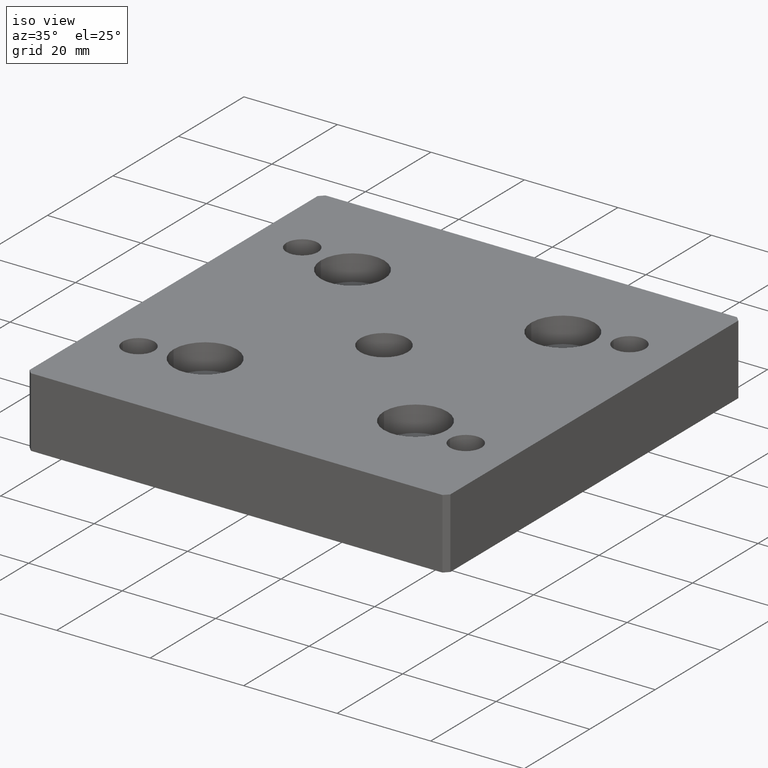
[diagram: clean part render]
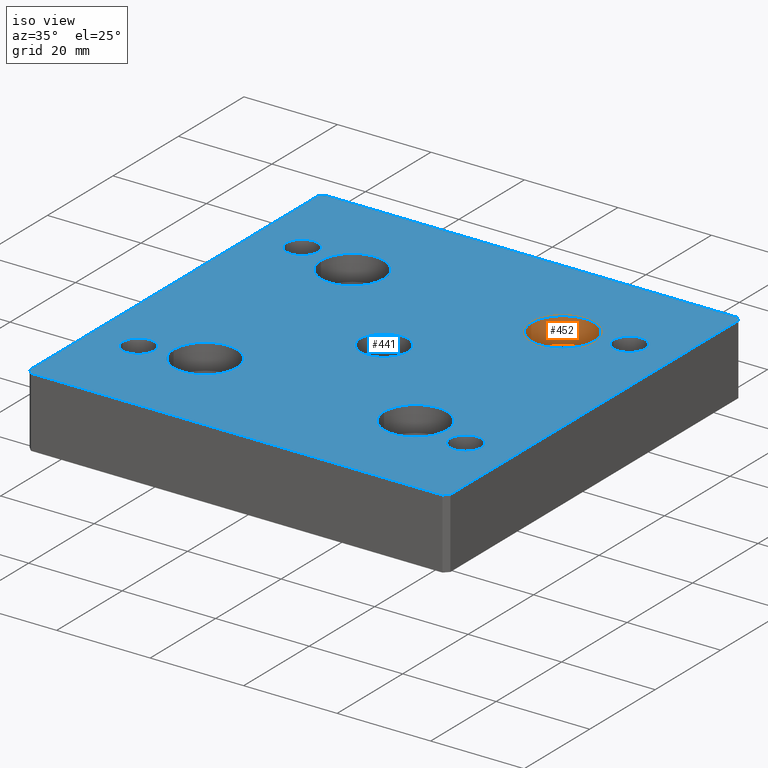
[diagram: same view with the hole feature highlighted: cylindrical wall and planar end face, labeled with their STEP entity ids]
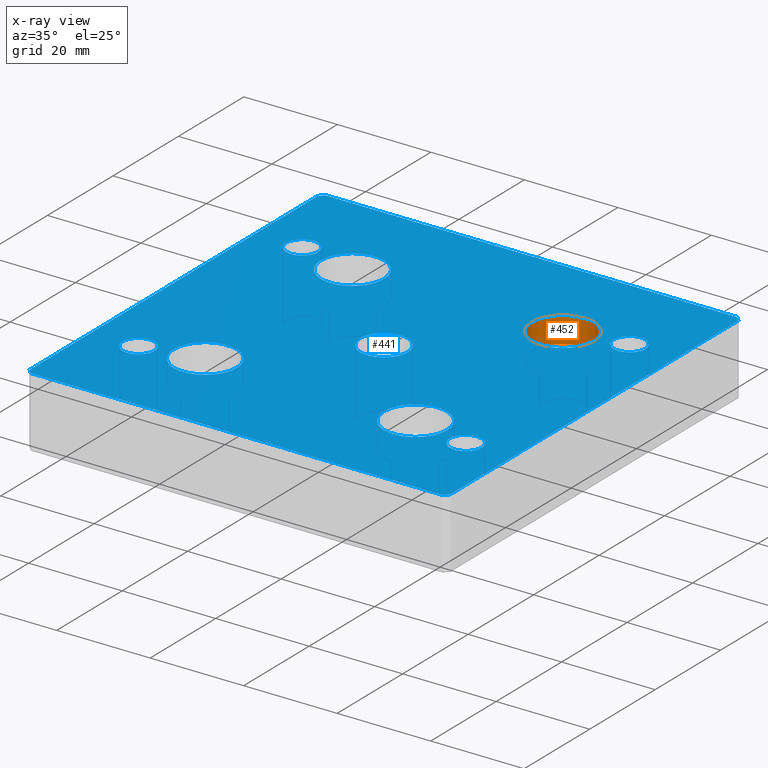
[diagram: x-ray of the same camera — body ghosted, the hole faces saturated]
A machine part, iso view. The highlighted faces form one hole feature of diameter 13.5 mm: the cylindrical wall (entity #452, orange) and its adjacent planar end face (entity #441, blue) — they share a circular edge in the B-rep.
The next image is the same camera in x-ray (body ghosted, the hole faces saturated) — the bore reads through the body.
Wall:
#105=FACE_BOUND('',#188,.T.);
#132=FACE_OUTER_BOUND('',#187,.T.);
#187=EDGE_LOOP('',(#405));
#188=EDGE_LOOP('',(#406));
#208=CIRCLE('',#478,6.75);
#222=CIRCLE('',#502,6.75);
#250=VERTEX_POINT('',#711);
#264=VERTEX_POINT('',#749);
#300=EDGE_CURVE('',#250,#250,#208,.T.);
#314=EDGE_CURVE('',#264,#264,#222,.T.);
#405=ORIENTED_EDGE('',*,*,#300,.T.);
#406=ORIENTED_EDGE('',*,*,#314,.F.);
#427=CYLINDRICAL_SURFACE('',#503,6.75);
#452=ADVANCED_FACE('',(#132,#105),#427,.F.);
#478=AXIS2_PLACEMENT_3D('',#712,#574,#575);
#502=AXIS2_PLACEMENT_3D('',#750,#622,#623);
#503=AXIS2_PLACEMENT_3D('',#751,#624,#625);
#574=DIRECTION('center_axis',(0.,0.,1.));
#575=DIRECTION('ref_axis',(1.,0.,0.));
#622=DIRECTION('center_axis',(0.,0.,1.));
#623=DIRECTION('ref_axis',(1.,0.,0.));
#624=DIRECTION('center_axis',(0.,0.,1.));
#625=DIRECTION('ref_axis',(1.,0.,0.));
#711=CARTESIAN_POINT('',(15.74999999991,22.49999999991,0.));
#712=CARTESIAN_POINT('Origin',(22.49999999991,22.49999999991,0.));
#749=CARTESIAN_POINT('',(15.74999999991,22.49999999991,-5.5));
#750=CARTESIAN_POINT('Origin',(22.49999999991,22.49999999991,-5.5));
#751=CARTESIAN_POINT('Origin',(22.49999999991,22.49999999991,-5.5));
End face:
#18=LINE('',#660,#42);
#21=LINE('',#666,#45);
#24=LINE('',#672,#48);
#27=LINE('',#678,#51);
#30=LINE('',#684,#54);
#33=LINE('',#690,#57);
#36=LINE('',#696,#60);
#38=LINE('',#699,#62);
#42=VECTOR('',#527,1.41421356236698);
#45=VECTOR('',#532,87.999999999648);
#48=VECTOR('',#537,1.41421356236763);
#51=VECTOR('',#542,87.999999999648);
#54=VECTOR('',#547,1.41421356236763);
#57=VECTOR('',#552,87.999999999648);
#60=VECTOR('',#557,1.41421356236698);
#62=VECTOR('',#561,87.999999999648);
#71=PLANE('',#472);
#78=FACE_BOUND('',#150,.T.);
#79=FACE_BOUND('',#151,.T.);
#80=FACE_BOUND('',#152,.T.);
#81=FACE_BOUND('',#153,.T.);
#82=FACE_BOUND('',#154,.T.);
#83=FACE_BOUND('',#155,.T.);
#84=FACE_BOUND('',#156,.T.);
#85=FACE_BOUND('',#157,.T.);
#86=FACE_BOUND('',#158,.T.);
#121=FACE_OUTER_BOUND('',#149,.T.);
#149=EDGE_LOOP('',(#353,#354,#355,#356,#357,#358,#359,#360));
#150=EDGE_LOOP('',(#361));
#151=EDGE_LOOP('',(#362));
#152=EDGE_LOOP('',(#363));
#153=EDGE_LOOP('',(#364));
#154=EDGE_LOOP('',(#365));
#155=EDGE_LOOP('',(#366));
#156=EDGE_LOOP('',(#367));
#157=EDGE_LOOP('',(#368));
#158=EDGE_LOOP('',(#369));
#201=CIRCLE('',#462,5.053);
#203=CIRCLE('',#473,3.375);
#204=CIRCLE('',#474,3.375);
#205=CIRCLE('',#475,3.375);
#206=CIRCLE('',#476,3.375);
#207=CIRCLE('',#477,6.75);
#208=CIRCLE('',#478,6.75);
#209=CIRCLE('',#479,6.75);
#210=CIRCLE('',#480,6.75);
#227=VERTEX_POINT('',#648);
#229=VERTEX_POINT('',#653);
#232=VERTEX_POINT('',#658);
#234=VERTEX_POINT('',#664);
#236=VERTEX_POINT('',#670);
#238=VERTEX_POINT('',#676);
#240=VERTEX_POINT('',#682);
#242=VERTEX_POINT('',#688);
#244=VERTEX_POINT('',#694);
#245=VERTEX_POINT('',#701);
#246=VERTEX_POINT('',#703);
#247=VERTEX_POINT('',#705);
#248=VERTEX_POINT('',#707);
#249=VERTEX_POINT('',#709);
#250=VERTEX_POINT('',#711);
#251=VERTEX_POINT('',#713);
#252=VERTEX_POINT('',#715);
#269=EDGE_CURVE('',#227,#227,#201,.T.);
#274=EDGE_CURVE('',#229,#232,#18,.T.);
#277=EDGE_CURVE('',#232,#234,#21,.T.);
#280=EDGE_CURVE('',#234,#236,#24,.T.);
#283=EDGE_CURVE('',#236,#238,#27,.T.);
#286=EDGE_CURVE('',#238,#240,#30,.T.);
#289=EDGE_CURVE('',#240,#242,#33,.T.);
#292=EDGE_CURVE('',#242,#244,#36,.T.);
#294=EDGE_CURVE('',#244,#229,#38,.T.);
#295=EDGE_CURVE('',#245,#245,#203,.T.);
#296=EDGE_CURVE('',#246,#246,#204,.T.);
#297=EDGE_CURVE('',#247,#247,#205,.T.);
#298=EDGE_CURVE('',#248,#248,#206,.T.);
#299=EDGE_CURVE('',#249,#249,#207,.T.);
#300=EDGE_CURVE('',#250,#250,#208,.T.);
#301=EDGE_CURVE('',#251,#251,#209,.T.);
#302=EDGE_CURVE('',#252,#252,#210,.T.);
#353=ORIENTED_EDGE('',*,*,#274,.T.);
#354=ORIENTED_EDGE('',*,*,#277,.T.);
#355=ORIENTED_EDGE('',*,*,#280,.T.);
#356=ORIENTED_EDGE('',*,*,#283,.T.);
#357=ORIENTED_EDGE('',*,*,#286,.T.);
#358=ORIENTED_EDGE('',*,*,#289,.T.);
#359=ORIENTED_EDGE('',*,*,#292,.T.);
#360=ORIENTED_EDGE('',*,*,#294,.T.);
#361=ORIENTED_EDGE('',*,*,#269,.T.);
#362=ORIENTED_EDGE('',*,*,#295,.F.);
#363=ORIENTED_EDGE('',*,*,#296,.F.);
#364=ORIENTED_EDGE('',*,*,#297,.F.);
#365=ORIENTED_EDGE('',*,*,#298,.F.);
#366=ORIENTED_EDGE('',*,*,#299,.F.);
#367=ORIENTED_EDGE('',*,*,#300,.F.);
#368=ORIENTED_EDGE('',*,*,#301,.F.);
#369=ORIENTED_EDGE('',*,*,#302,.F.);
#441=ADVANCED_FACE('',(#121,#78,#79,#80,#81,#82,#83,#84,#85,#86),#71,.T.);
#462=AXIS2_PLACEMENT_3D('',#649,#518,#519);
#472=AXIS2_PLACEMENT_3D('',#700,#562,#563);
#473=AXIS2_PLACEMENT_3D('',#702,#564,#565);
#474=AXIS2_PLACEMENT_3D('',#704,#566,#567);
#475=AXIS2_PLACEMENT_3D('',#706,#568,#569);
#476=AXIS2_PLACEMENT_3D('',#708,#570,#571);
#477=AXIS2_PLACEMENT_3D('',#710,#572,#573);
#478=AXIS2_PLACEMENT_3D('',#712,#574,#575);
#479=AXIS2_PLACEMENT_3D('',#714,#576,#577);
#480=AXIS2_PLACEMENT_3D('',#716,#578,#579);
#518=DIRECTION('center_axis',(0.,0.,-1.));
#519=DIRECTION('ref_axis',(1.,0.,0.));
#527=DIRECTION('',(0.707106781186387,-0.707106781186708,0.));
#532=DIRECTION('',(1.,0.,0.));
#537=DIRECTION('',(0.707106781186708,0.707106781186387,0.));
#542=DIRECTION('',(0.,1.,0.));
#547=DIRECTION('',(-0.707106781186708,0.707106781186387,0.));
#552=DIRECTION('',(-1.,0.,0.));
#557=DIRECTION('',(-0.707106781186387,-0.707106781186708,0.));
#561=DIRECTION('',(0.,-1.,0.));
#562=DIRECTION('center_axis',(0.,0.,1.));
#563=DIRECTION('ref_axis',(1.,0.,0.));
#564=DIRECTION('center_axis',(0.,0.,1.));
#565=DIRECTION('ref_axis',(1.,0.,0.));
#566=DIRECTION('center_axis',(0.,0.,1.));
#567=DIRECTION('ref_axis',(1.,0.,0.));
#568=DIRECTION('center_axis',(0.,0.,1.));
#569=DIRECTION('ref_axis',(1.,0.,0.));
#570=DIRECTION('center_axis',(0.,0.,1.));
#571=DIRECTION('ref_axis',(1.,0.,0.));
#572=DIRECTION('center_axis',(0.,0.,1.));
#573=DIRECTION('ref_axis',(1.,0.,0.));
#574=DIRECTION('center_axis',(0.,0.,1.));
#575=DIRECTION('ref_axis',(1.,0.,0.));
#576=DIRECTION('center_axis',(0.,0.,1.));
#577=DIRECTION('ref_axis',(1.,0.,0.));
#578=DIRECTION('center_axis',(0.,0.,1.));
#579=DIRECTION('ref_axis',(1.,0.,0.));
#648=CARTESIAN_POINT('',(5.053,0.,0.));
#649=CARTESIAN_POINT('Origin',(0.,0.,0.));
#653=CARTESIAN_POINT('',(-44.9999999998199,-43.999999999824,0.));
#658=CARTESIAN_POINT('',(-43.9999999998245,-44.9999999998199,0.));
#660=CARTESIAN_POINT('',(-44.9999999998199,-43.999999999824,0.));
#664=CARTESIAN_POINT('',(43.9999999998236,-44.9999999998199,0.));
#666=CARTESIAN_POINT('',(-43.9999999998245,-44.9999999998199,0.));
#670=CARTESIAN_POINT('',(44.9999999998199,-43.999999999824,0.));
#672=CARTESIAN_POINT('',(43.9999999998236,-44.9999999998199,0.));
#676=CARTESIAN_POINT('',(44.9999999998199,43.999999999824,0.));
#678=CARTESIAN_POINT('',(44.9999999998199,-43.999999999824,0.));
#682=CARTESIAN_POINT('',(43.9999999998236,44.9999999998199,0.));
#684=CARTESIAN_POINT('',(44.9999999998199,43.999999999824,0.));
#688=CARTESIAN_POINT('',(-43.9999999998245,44.9999999998199,0.));
#690=CARTESIAN_POINT('',(43.9999999998236,44.9999999998199,0.));
#694=CARTESIAN_POINT('',(-44.9999999998199,43.999999999824,0.));
#696=CARTESIAN_POINT('',(-43.9999999998245,44.9999999998199,0.));
#699=CARTESIAN_POINT('',(-44.9999999998199,43.999999999824,0.));
#700=CARTESIAN_POINT('Origin',(-54.0000047374324,-54.0000047376525,0.));
#701=CARTESIAN_POINT('',(-38.3749999998599,24.9999999999,0.));
#702=CARTESIAN_POINT('Origin',(-34.9999999998599,24.9999999999,0.));
#703=CARTESIAN_POINT('',(31.6249999998599,24.9999999999,0.));
#704=CARTESIAN_POINT('Origin',(34.9999999998599,24.9999999999,0.));
#705=CARTESIAN_POINT('',(31.6249999998599,-24.9999999999,0.));
#706=CARTESIAN_POINT('Origin',(34.9999999998599,-24.9999999999,0.));
#707=CARTESIAN_POINT('',(-38.3749999998599,-24.9999999999,0.));
#708=CARTESIAN_POINT('Origin',(-34.9999999998599,-24.9999999999,0.));
#709=CARTESIAN_POINT('',(-29.24999999991,22.49999999991,0.));
#710=CARTESIAN_POINT('Origin',(-22.49999999991,22.49999999991,0.));
#711=CARTESIAN_POINT('',(15.74999999991,22.49999999991,0.));
#712=CARTESIAN_POINT('Origin',(22.49999999991,22.49999999991,0.));
#713=CARTESIAN_POINT('',(15.74999999991,-22.49999999991,0.));
#714=CARTESIAN_POINT('Origin',(22.49999999991,-22.49999999991,0.));
#715=CARTESIAN_POINT('',(-29.24999999991,-22.49999999991,0.));
#716=CARTESIAN_POINT('Origin',(-22.49999999991,-22.49999999991,0.));